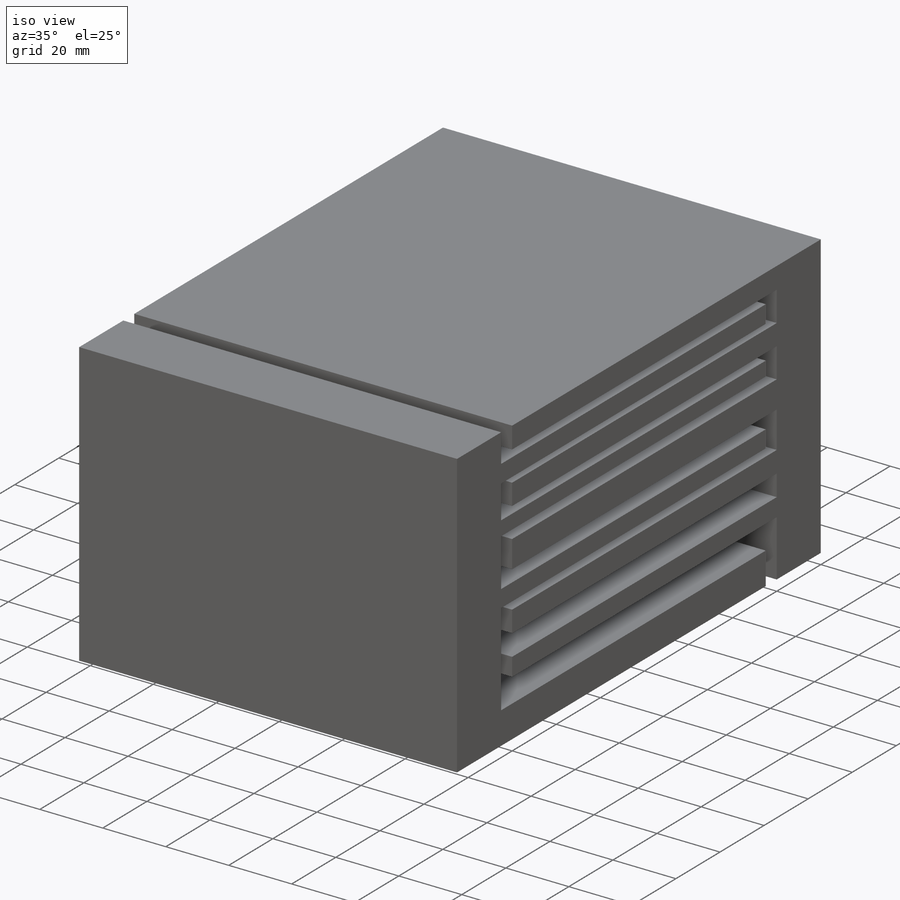
[diagram: iso view]
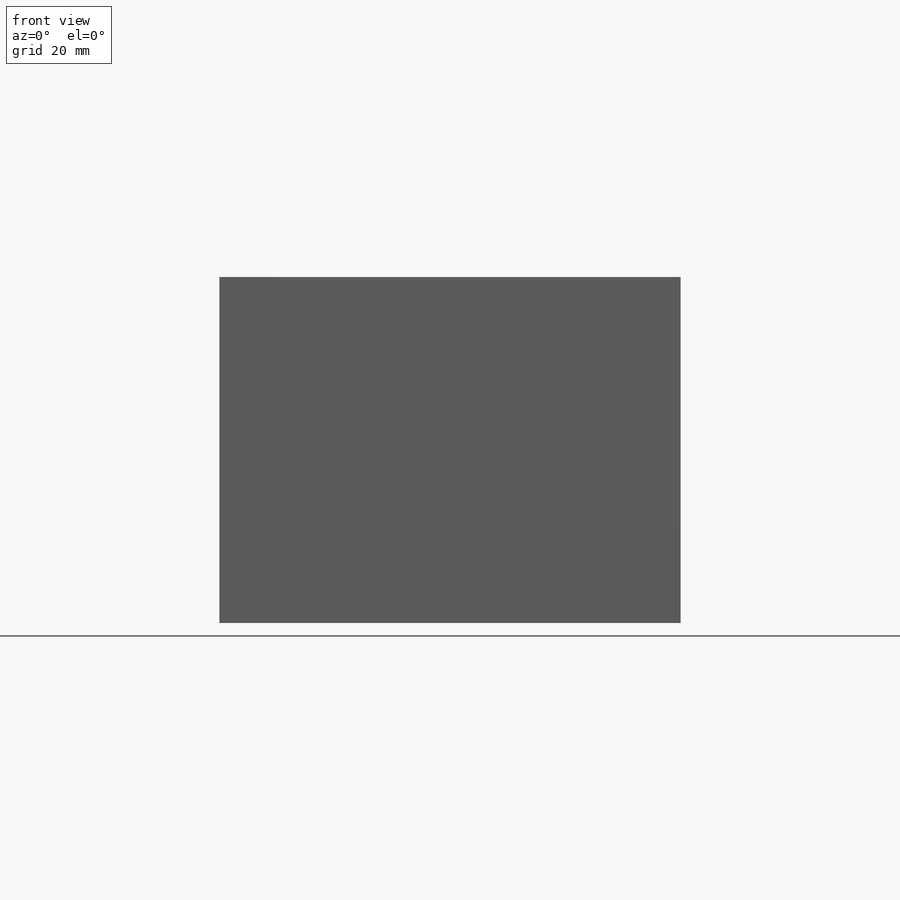
[diagram: front view]
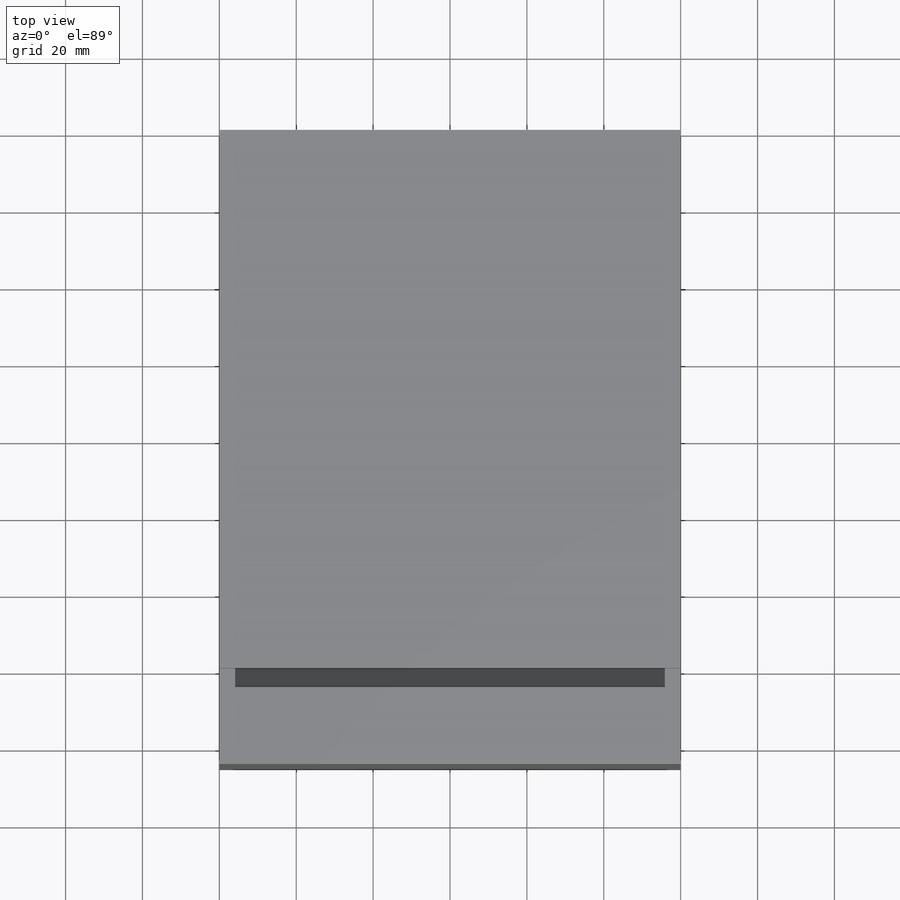
[diagram: top view]
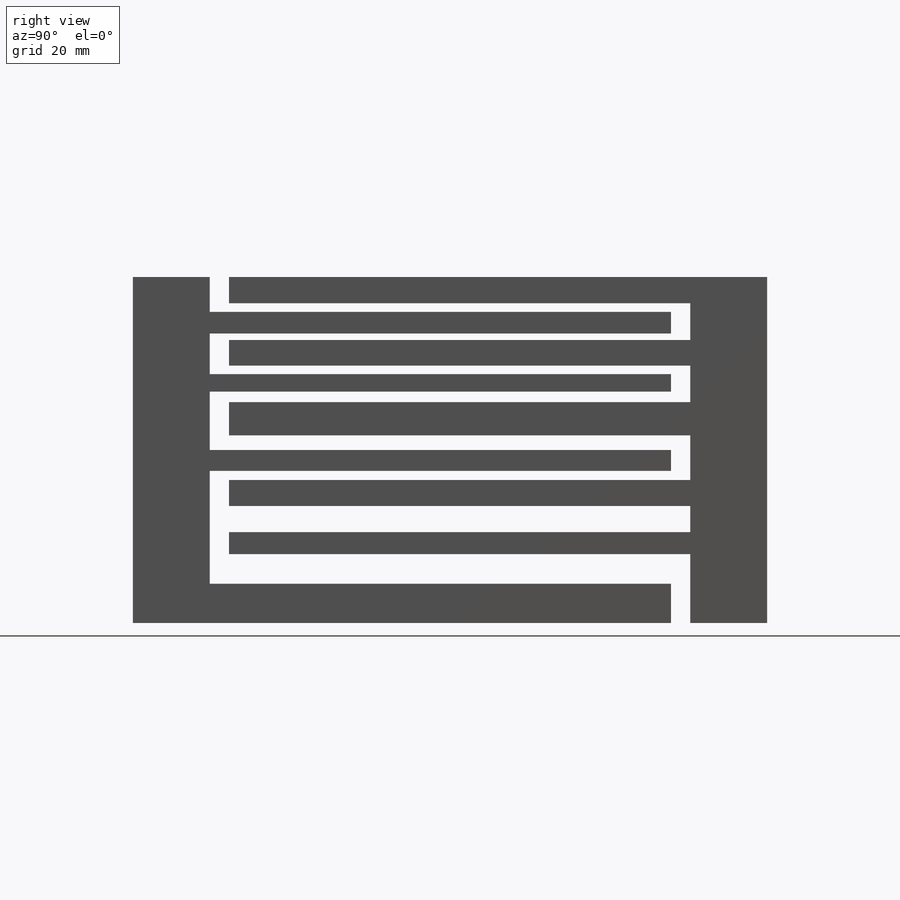
[diagram: right view]
SOLIDWORKS PART (.sldprt)
format: sldprt  version: not decoded by parser v0  size: 208,384 bytes
history: native  units: mm
features: sketch x5, extrude x5, material x1, plane x1 (+12 scaffold rows collapsed)
feature tree (24):
  scaffold x12  (default folders/planes/origin — collapsed)
  material  "Material <not specified>"
  sketch  "Sketch1"  dims[D1=90.0mm D2=120.0mm]
  extrude  "Boss-Extrude1"  Depth=20mm
  sketch  "Sketch2"
  extrude  "Boss-Extrude2"  Depth=120mm
  sketch  "Sketch3"  dims[D1=90.0mm]
  extrude  "Boss-Extrude3"  Depth=20mm
  sketch  "Sketch4"
  extrude  "Boss-Extrude4"  Depth=120mm
  plane  "Plane1"
  sketch  "Sketch6"
  extrude  "Boss-Extrude5"  Depth=120mm
decode coverage: 7 of 10 modeling features carry decoded parameters
note: suppression state not decoded; provenance and decode notes live in map.json
